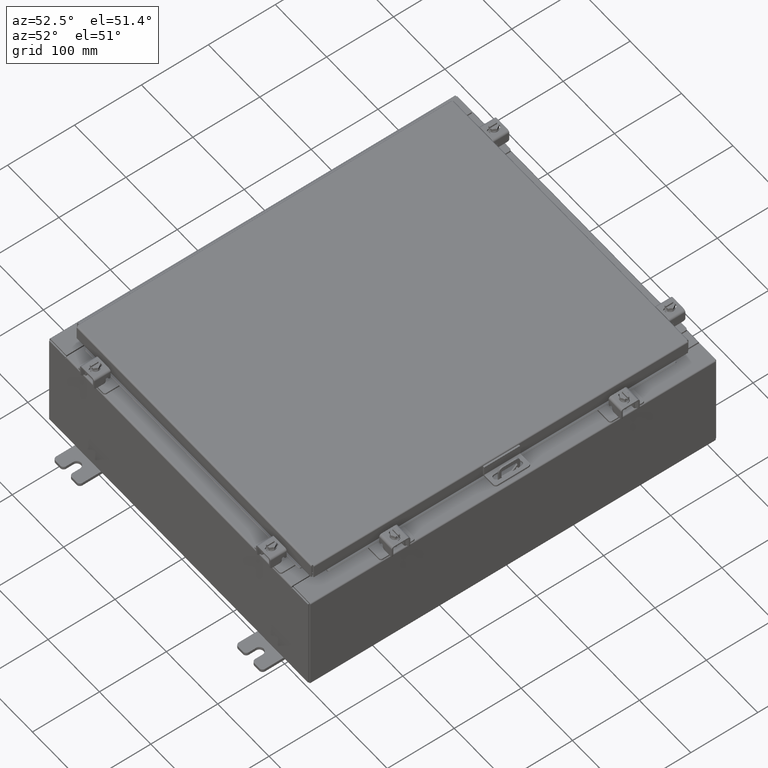
[diagram: clean part render]
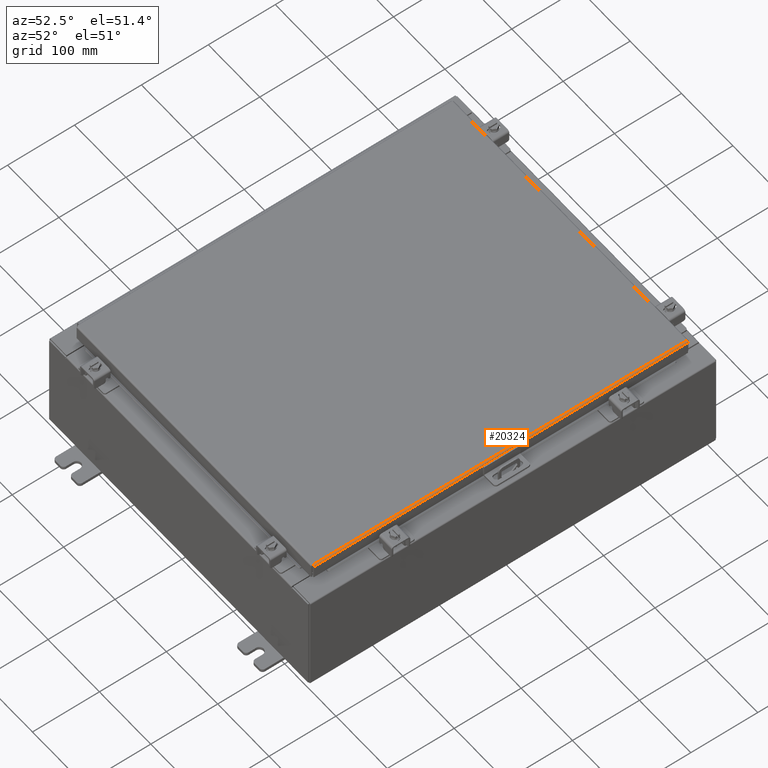
[diagram: same view with one face highlighted and labeled with its STEP entity id]
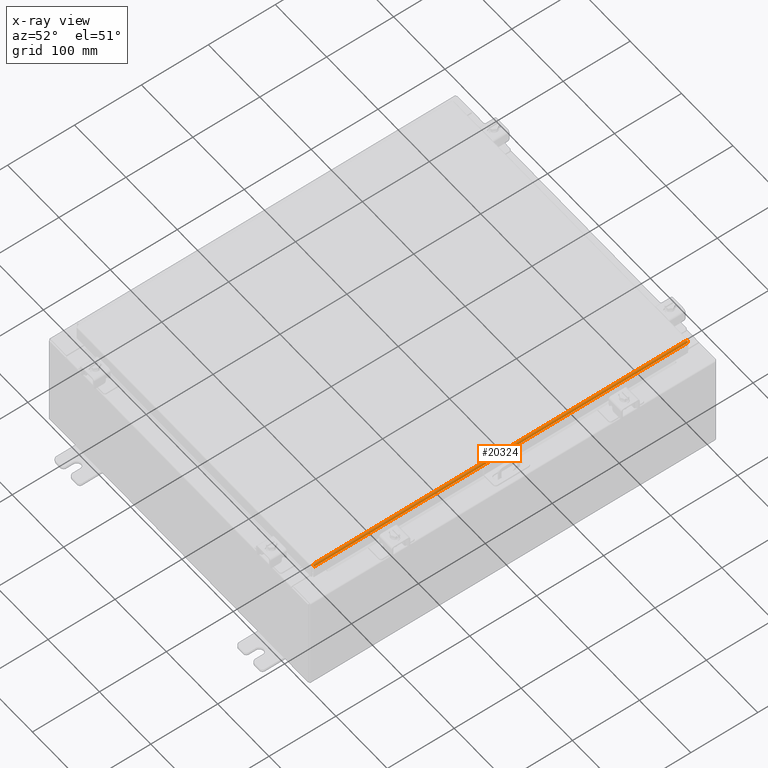
[diagram: x-ray of the same camera — body ghosted, the highlighted face saturated]
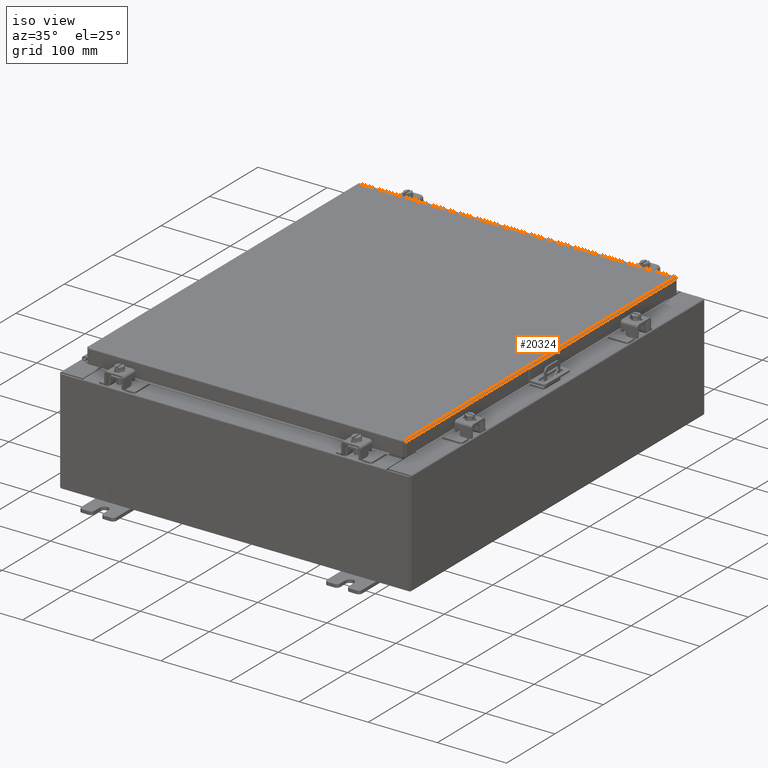
[diagram: same view with one face highlighted and labeled with its STEP entity id]
A machine part, auxiliary view. The second image highlights one B-rep face of the part: STEP entity #20324.
The next image is the same camera in x-ray: the body ghosted, the highlighted face saturated — about 0% of this face is hidden behind the body in this view.
A second angle (iso view) of the same face is appended — the face is thin or edge-on in the first view.
In plain terms, the highlighted cylindrical surface (edge-blend (fillet) strip) has radius 2.2276 mm, axis along (-0, -1, -0).
Its self-contained STEP definition (entity closure, byte-faithful):
#526 = CARTESIAN_POINT ( 'NONE',  ( 9.001779903154991700, -11.00620482203135400, -2.038214714022946300E-016 ) ) ;
#1013 = B_SPLINE_CURVE_WITH_KNOTS ( 'NONE', 3,
 ( #27569, #30055, #9450, #21645, #20858, #3480, #27362, #1162, #526, #23477 ),
 .UNSPECIFIED., .F., .F.,
 ( 4, 2, 2, 2, 4 ),
 ( 0.0000000000000000000, 0.2500000000000000000, 0.5000000000000000000, 0.7500000000000000000, 1.000000000000000000 ),
 .UNSPECIFIED. ) ;
#1162 = CARTESIAN_POINT ( 'NONE',  ( 9.013255289458308900, -11.00610964406271100, -0.002282596256188923000 ) ) ;
#1973 = CARTESIAN_POINT ( 'NONE',  ( 9.001779903154989900, 11.00620482203135200, -2.037881236484656600E-016 ) ) ;
#2543 = CARTESIAN_POINT ( 'NONE',  ( 9.077999999999999400, 0.0000000000000000000, -0.08770000000000007000 ) ) ;
#2769 = DIRECTION ( 'NONE',  ( 1.000000000000000000, 0.0000000000000000000, 2.725618009642215600E-015 ) ) ;
#3197 = EDGE_CURVE ( 'NONE', #14990, #23699, #1013, .T. ) ;
#3480 = CARTESIAN_POINT ( 'NONE',  ( 9.044195747341797500, -11.00582411015677800, -0.01756921792167976500 ) ) ;
#3565 = VERTEX_POINT ( 'NONE', #31547 ) ;
#5219 = VECTOR ( 'NONE', #28222, 39.37007874015748100 ) ;
#9146 = ORIENTED_EDGE ( 'NONE', *, *, #20242, .F. ) ;
#9410 = VERTEX_POINT ( 'NONE', #18686 ) ;
#9450 = CARTESIAN_POINT ( 'NONE',  ( 9.075717403743809100, -11.00534822031355900, -0.06474471054169121700 ) ) ;
#9524 = CARTESIAN_POINT ( 'NONE',  ( 9.034467384578528400, 11.00591928812542400, -0.01106893374133176100 ) ) ;
#9750 = ORIENTED_EDGE ( 'NONE', *, *, #11573, .F. ) ;
#10297 = DIRECTION ( 'NONE',  ( -0.0000000000000000000, -1.000000000000000000, -0.0000000000000000000 ) ) ;
#11573 = EDGE_CURVE ( 'NONE', #23699, #3565, #31805, .T. ) ;
#12027 = CARTESIAN_POINT ( 'NONE',  ( 9.060430782078317000, 11.00563375421949200, -0.03380425265820009900 ) ) ;
#14553 = CARTESIAN_POINT ( 'NONE',  ( 9.075717403743809100, 11.00534822031356400, -0.06474471054169121700 ) ) ;
#14990 = VERTEX_POINT ( 'NONE', #21779 ) ;
#15610 = CARTESIAN_POINT ( 'NONE',  ( 8.990299999999997700, -11.00630000000000000, -2.048885995248197400E-016 ) ) ;
#16630 = CARTESIAN_POINT ( 'NONE',  ( 8.990299999999997700, -11.00630000000000000, -2.048885995248197400E-016 ) ) ;
#17054 = CARTESIAN_POINT ( 'NONE',  ( 9.077999999999999400, 11.00515786437627100, -0.08770000000000007000 ) ) ;
#18686 = CARTESIAN_POINT ( 'NONE',  ( 9.077999999999999400, 11.00515786437627100, -0.08770000000000007000 ) ) ;
#18948 = EDGE_CURVE ( 'NONE', #3565, #9410, #31496, .T. ) ;
#20242 = EDGE_CURVE ( 'NONE', #9410, #14990, #31925, .T. ) ;
#20324 = ADVANCED_FACE ( 'NONE', ( #29582 ), #22134, .T. ) ;
#20641 = EDGE_LOOP ( 'NONE', ( #9750, #30763, #9146, #25495 ) ) ;
#20858 = CARTESIAN_POINT ( 'NONE',  ( 9.060430782078318800, -11.00563375421949200, -0.03380425265820009200 ) ) ;
#21645 = CARTESIAN_POINT ( 'NONE',  ( 9.066931066258664600, -11.00553857625084800, -0.04353261542147222900 ) ) ;
#21779 = CARTESIAN_POINT ( 'NONE',  ( 9.077999999999999400, -11.00515786437626900, -0.08770000000000007000 ) ) ;
#22134 = CYLINDRICAL_SURFACE ( 'NONE', #24882, 0.08770000000000026400 ) ;
#23477 = CARTESIAN_POINT ( 'NONE',  ( 8.990299999999997700, -11.00630000000000000, -2.048885995248197400E-016 ) ) ;
#23699 = VERTEX_POINT ( 'NONE', #16630 ) ;
#24499 = CARTESIAN_POINT ( 'NONE',  ( 9.013255289458310700, 11.00610964406271500, -0.002282596256188923400 ) ) ;
#24882 = AXIS2_PLACEMENT_3D ( 'NONE', #27828, #10297, #2769 ) ;
#25094 = DIRECTION ( 'NONE',  ( 0.0000000000000000000, -1.000000000000000000, 0.0000000000000000000 ) ) ;
#25495 = ORIENTED_EDGE ( 'NONE', *, *, #18948, .F. ) ;
#27035 = CARTESIAN_POINT ( 'NONE',  ( 9.044195747341799300, 11.00582411015678200, -0.01756921792167976500 ) ) ;
#27362 = CARTESIAN_POINT ( 'NONE',  ( 9.034467384578528400, -11.00591928812542100, -0.01106893374133176100 ) ) ;
#27569 = CARTESIAN_POINT ( 'NONE',  ( 9.077999999999999400, -11.00515786437626900, -0.08770000000000007000 ) ) ;
#27828 = CARTESIAN_POINT ( 'NONE',  ( 8.990299999999997700, -11.00630000000000000, -0.08770000000000030500 ) ) ;
#28222 = DIRECTION ( 'NONE',  ( 0.0000000000000000000, 1.000000000000000000, 0.0000000000000000000 ) ) ;
#29535 = CARTESIAN_POINT ( 'NONE',  ( 9.066931066258666400, 11.00553857625084800, -0.04353261542147223600 ) ) ;
#29582 = FACE_OUTER_BOUND ( 'NONE', #20641, .T. ) ;
#30055 = CARTESIAN_POINT ( 'NONE',  ( 9.077999999999999400, -11.00525304234491000, -0.07622009684500735700 ) ) ;
#30339 = VECTOR ( 'NONE', #25094, 39.37007874015748100 ) ;
#30763 = ORIENTED_EDGE ( 'NONE', *, *, #3197, .F. ) ;
#31496 = B_SPLINE_CURVE_WITH_KNOTS ( 'NONE', 3,
 ( #31931, #1973, #24499, #9524, #27035, #12027, #29535, #14553, #32040, #17054 ),
 .UNSPECIFIED., .F., .F.,
 ( 4, 2, 2, 2, 4 ),
 ( 0.0000000000000000000, 0.2500000000000000000, 0.5000000000000000000, 0.7500000000000000000, 1.000000000000000000 ),
 .UNSPECIFIED. ) ;
#31547 = CARTESIAN_POINT ( 'NONE',  ( 8.990299999999999500, 11.00630000000000000, -2.048885995248197400E-016 ) ) ;
#31805 = LINE ( 'NONE', #15610, #5219 ) ;
#31925 = LINE ( 'NONE', #2543, #30339 ) ;
#31931 = CARTESIAN_POINT ( 'NONE',  ( 8.990299999999999500, 11.00630000000000000, -2.048885995248197400E-016 ) ) ;
#32040 = CARTESIAN_POINT ( 'NONE',  ( 9.078000000000001200, 11.00525304234491700, -0.07622009684500738500 ) ) ;